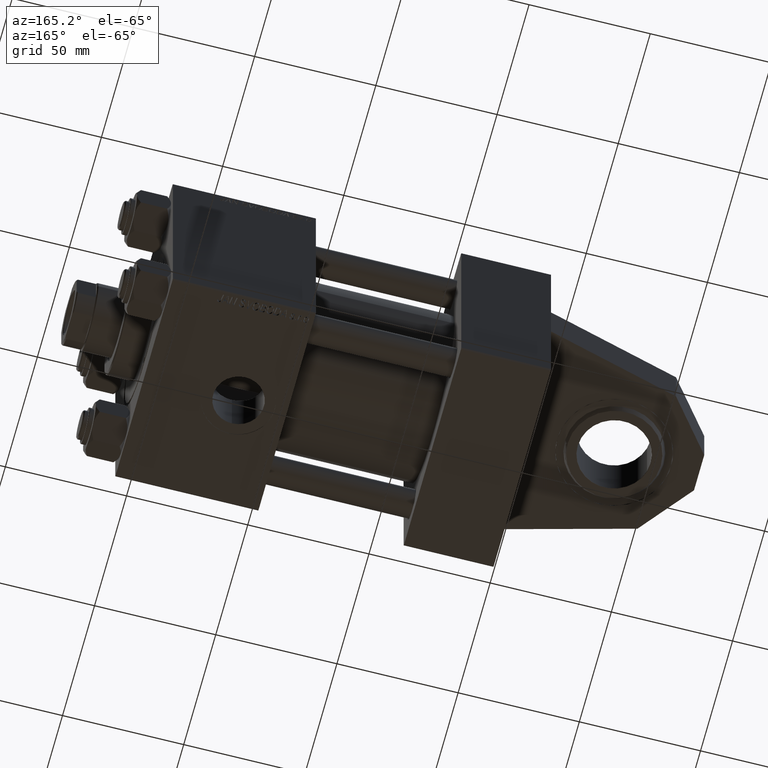
[diagram: clean part render]
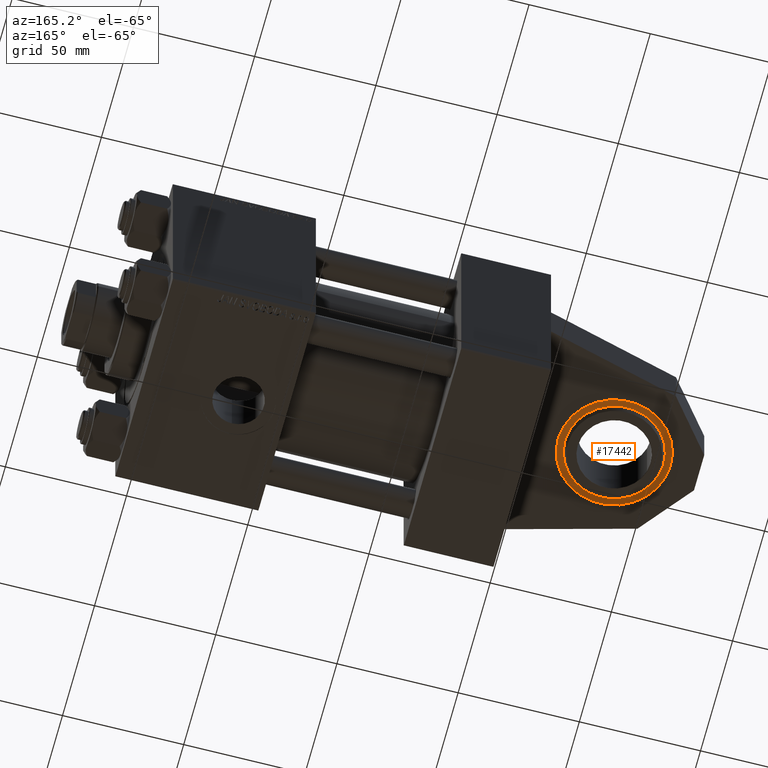
[diagram: same view with one face highlighted and labeled with its STEP entity id]
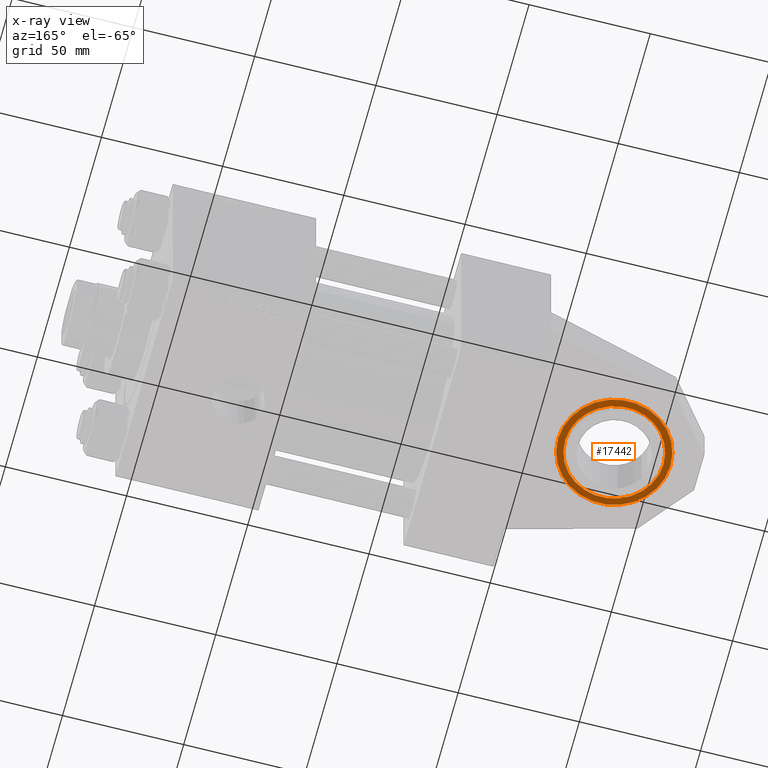
[diagram: x-ray of the same camera — body ghosted, the highlighted face saturated]
A machine part, auxiliary view. The second image highlights one B-rep face of the part: STEP entity #17442.
The next image is the same camera in x-ray: the body ghosted, the highlighted face saturated — about 0% of this face is hidden behind the body in this view.
In plain terms, the highlighted planar face has unit normal (0, 0, 1).
Its self-contained STEP definition (entity closure, byte-faithful):
#378 = CIRCLE ( 'NONE', #43961, 20.35000000000000142 ) ;
#634 = CIRCLE ( 'NONE', #50903, 20.35000000000000142 ) ;
#2463 = EDGE_CURVE ( 'NONE', #18687, #20826, #634, .T. ) ;
#2711 = EDGE_CURVE ( 'NONE', #31966, #20728, #49268, .T. ) ;
#3773 = DIRECTION ( 'NONE',  ( 0.000000000000000000, 0.000000000000000000, -1.000000000000000000 ) ) ;
#5755 = PLANE ( 'NONE',  #43776 ) ;
#6231 = DIRECTION ( 'NONE',  ( 1.000000000000000000, 0.000000000000000000, 0.000000000000000000 ) ) ;
#7526 = CARTESIAN_POINT ( 'NONE',  ( 0.000000000000000000, 0.000000000000000000, -8.999999999999998224 ) ) ;
#8246 = CARTESIAN_POINT ( 'NONE',  ( 23.19999999999999929, 0.000000000000000000, -8.999999999999998224 ) ) ;
#10424 = DIRECTION ( 'NONE',  ( -0.000000000000000000, -0.000000000000000000, 1.000000000000000000 ) ) ;
#12801 = DIRECTION ( 'NONE',  ( 1.000000000000000000, 0.000000000000000000, 0.000000000000000000 ) ) ;
#13675 = EDGE_LOOP ( 'NONE', ( #51643, #23800 ) ) ;
#15911 = DIRECTION ( 'NONE',  ( 1.000000000000000000, 0.000000000000000000, 0.000000000000000000 ) ) ;
#17442 = ADVANCED_FACE ( 'NONE', ( #22516, #41712 ), #5755, .F. ) ;
#17797 = DIRECTION ( 'NONE',  ( 1.000000000000000000, 0.000000000000000000, 0.000000000000000000 ) ) ;
#18687 = VERTEX_POINT ( 'NONE', #21673 ) ;
#20000 = CARTESIAN_POINT ( 'NONE',  ( 20.35000000000000142, 0.000000000000000000, -8.999999999999996447 ) ) ;
#20728 = VERTEX_POINT ( 'NONE', #31560 ) ;
#20736 = AXIS2_PLACEMENT_3D ( 'NONE', #23468, #3773, #27897 ) ;
#20826 = VERTEX_POINT ( 'NONE', #20000 ) ;
#21673 = CARTESIAN_POINT ( 'NONE',  ( -20.35000000000000142, 2.492156236264863657E-15, -8.999999999999996447 ) ) ;
#21750 = DIRECTION ( 'NONE',  ( 0.000000000000000000, -0.000000000000000000, 1.000000000000000000 ) ) ;
#21836 = ORIENTED_EDGE ( 'NONE', *, *, #2463, .T. ) ;
#22492 = CARTESIAN_POINT ( 'NONE',  ( 0.000000000000000000, 0.000000000000000000, -8.999999999999996447 ) ) ;
#22516 = FACE_OUTER_BOUND ( 'NONE', #13675, .T. ) ;
#23468 = CARTESIAN_POINT ( 'NONE',  ( 0.000000000000000000, 0.000000000000000000, -8.999999999999998224 ) ) ;
#23800 = ORIENTED_EDGE ( 'NONE', *, *, #30724, .T. ) ;
#24245 = ORIENTED_EDGE ( 'NONE', *, *, #44323, .T. ) ;
#24343 = CARTESIAN_POINT ( 'NONE',  ( 0.000000000000000000, 0.000000000000000000, -8.999999999999996447 ) ) ;
#27897 = DIRECTION ( 'NONE',  ( 1.000000000000000000, 0.000000000000000000, 0.000000000000000000 ) ) ;
#30724 = EDGE_CURVE ( 'NONE', #20728, #31966, #49163, .T. ) ;
#31560 = CARTESIAN_POINT ( 'NONE',  ( -23.19999999999999929, 2.859550276009069890E-15, -8.999999999999998224 ) ) ;
#31580 = AXIS2_PLACEMENT_3D ( 'NONE', #7526, #51860, #15911 ) ;
#31966 = VERTEX_POINT ( 'NONE', #8246 ) ;
#41712 = FACE_BOUND ( 'NONE', #48424, .T. ) ;
#43776 = AXIS2_PLACEMENT_3D ( 'NONE', #49828, #21750, #17797 ) ;
#43961 = AXIS2_PLACEMENT_3D ( 'NONE', #24343, #44556, #12801 ) ;
#44323 = EDGE_CURVE ( 'NONE', #20826, #18687, #378, .T. ) ;
#44556 = DIRECTION ( 'NONE',  ( -0.000000000000000000, -0.000000000000000000, 1.000000000000000000 ) ) ;
#48424 = EDGE_LOOP ( 'NONE', ( #24245, #21836 ) ) ;
#49163 = CIRCLE ( 'NONE', #31580, 23.19999999999999929 ) ;
#49268 = CIRCLE ( 'NONE', #20736, 23.19999999999999929 ) ;
#49828 = CARTESIAN_POINT ( 'NONE',  ( 0.000000000000000000, 23.50000000000000000, -8.999999999999998224 ) ) ;
#50903 = AXIS2_PLACEMENT_3D ( 'NONE', #22492, #10424, #6231 ) ;
#51643 = ORIENTED_EDGE ( 'NONE', *, *, #2711, .T. ) ;
#51860 = DIRECTION ( 'NONE',  ( 0.000000000000000000, 0.000000000000000000, -1.000000000000000000 ) ) ;